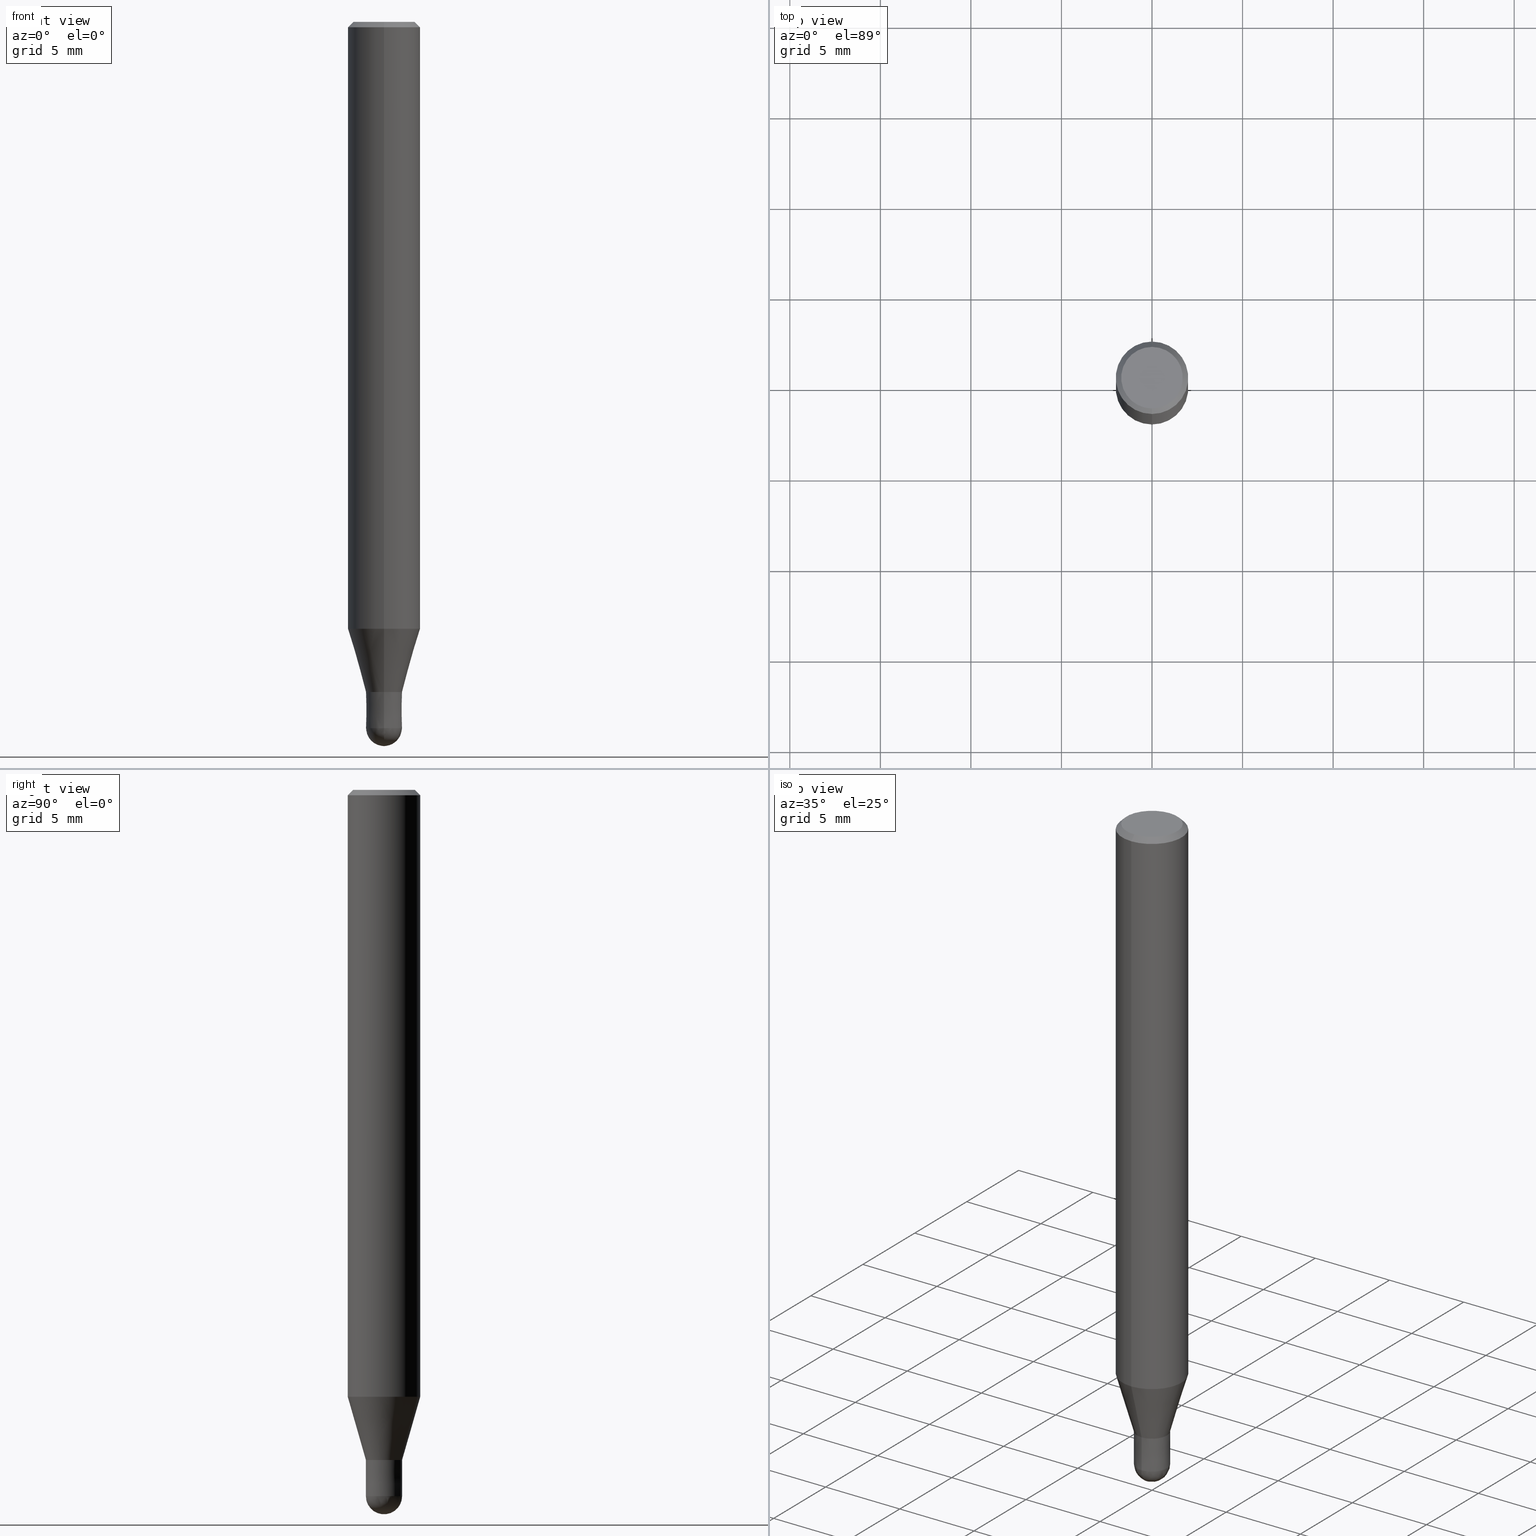
[diagram: canonical four-view strip — front | top / right | iso, engineering-drawing reading convention]
A machine part, canonical four-view strip (front | top / right | iso — engineering-drawing reading convention). The complete STEP part file that produces these views, byte-faithful:
ISO-10303-21;
HEADER;
FILE_DESCRIPTION(('no description'),'unknown implementation level');
FILE_NAME('HFB4020-0300S-Huellk.stp','  ',('CIMSOURCE GmbH'),('CADClick - KiM GmbH - www.kimweb.de'),'unknown preprocess','ACIS','unknown authorization');
FILE_SCHEMA(('automotive_design'));
ENDSEC;
DATA;
#1=MECHANICAL_DESIGN_GEOMETRIC_PRESENTATION_REPRESENTATION(' ',(#14,#15,#16,#17,#18,#19,#20,#21,#22,#23,#24,#25,#26,#27,#28,#29,#30,#31,#32,#33,#34,#35,#36,#37,#38,#39,#40,#41,#42,#43,#44,#45,#46,#47,#48,#49,#50,#51,#52,#53,#54,#55,#56,#57,#58,#59,#60,#61,#62,#63,#64,#65,#66),#10);
#2=PRODUCT_DEFINITION_CONTEXT('',#67,'design');
#3=APPLICATION_PROTOCOL_DEFINITION('INTERNATIONAL STANDARD','automotive_design',1994,#67);
#4=PRODUCT_CATEGORY_RELATIONSHIP('NONE','NONE',#68,#69);
#5=SHAPE_DEFINITION_REPRESENTATION(#70,#71);
#6=PRODUCT_DEFINITION_CONTEXT('',#72,'design');
#7=APPLICATION_PROTOCOL_DEFINITION('INTERNATIONAL STANDARD','automotive_design',1994,#72);
#8=PRODUCT_CATEGORY_RELATIONSHIP('NONE','NONE',#73,#74);
#9=SHAPE_DEFINITION_REPRESENTATION(#75,#76);
#10= (GEOMETRIC_REPRESENTATION_CONTEXT(3)GLOBAL_UNCERTAINTY_ASSIGNED_CONTEXT((#79))GLOBAL_UNIT_ASSIGNED_CONTEXT((#81,#82,#83))REPRESENTATION_CONTEXT('NONE','WORKSPACE'));
#14=STYLED_ITEM('',(#85),#86);
#15=STYLED_ITEM('',(#87),#88);
#16=STYLED_ITEM('',(#89),#90);
#17=STYLED_ITEM('',(#91),#92);
#18=STYLED_ITEM('',(#93),#94);
#19=STYLED_ITEM('',(#95),#96);
#20=STYLED_ITEM('',(#97),#98);
#21=STYLED_ITEM('',(#99),#100);
#22=STYLED_ITEM('',(#101),#102);
#23=STYLED_ITEM('',(#103),#104);
#24=STYLED_ITEM('',(#105),#106);
#25=STYLED_ITEM('',(#107),#108);
#26=STYLED_ITEM('',(#109),#110);
#27=STYLED_ITEM('',(#111),#112);
#28=STYLED_ITEM('',(#113),#114);
#29=STYLED_ITEM('',(#115),#116);
#30=STYLED_ITEM('',(#117),#118);
#31=STYLED_ITEM('',(#119),#120);
#32=STYLED_ITEM('',(#121),#122);
#33=STYLED_ITEM('',(#123),#124);
#34=STYLED_ITEM('',(#125),#126);
#35=STYLED_ITEM('',(#127),#128);
#36=STYLED_ITEM('',(#129),#130);
#37=STYLED_ITEM('',(#131),#132);
#38=STYLED_ITEM('',(#133),#134);
#39=STYLED_ITEM('',(#135),#136);
#40=STYLED_ITEM('',(#137),#138);
#41=STYLED_ITEM('',(#139),#140);
#42=STYLED_ITEM('',(#141),#142);
#43=STYLED_ITEM('',(#143),#144);
#44=STYLED_ITEM('',(#145),#146);
#45=STYLED_ITEM('',(#147),#148);
#46=STYLED_ITEM('',(#149),#150);
#47=STYLED_ITEM('',(#151),#152);
#48=STYLED_ITEM('',(#153),#154);
#49=STYLED_ITEM('',(#155),#156);
#50=STYLED_ITEM('',(#157),#158);
#51=STYLED_ITEM('',(#159),#160);
#52=STYLED_ITEM('',(#161),#162);
#53=STYLED_ITEM('',(#163),#164);
#54=STYLED_ITEM('',(#165),#166);
#55=STYLED_ITEM('',(#167),#168);
#56=STYLED_ITEM('',(#169),#170);
#57=STYLED_ITEM('',(#171),#172);
#58=STYLED_ITEM('',(#173),#174);
#59=STYLED_ITEM('',(#175),#176);
#60=STYLED_ITEM('',(#177),#178);
#61=STYLED_ITEM('',(#179),#180);
#62=STYLED_ITEM('',(#181),#182);
#63=STYLED_ITEM('',(#183),#184);
#64=STYLED_ITEM('',(#185),#186);
#65=STYLED_ITEM('',(#187),#188);
#66=STYLED_ITEM('',(#189),#190);
#67=APPLICATION_CONTEXT(' ');
#68=PRODUCT_CATEGORY('part','NONE');
#69=PRODUCT_RELATED_PRODUCT_CATEGORY('detail',' ',(#191));
#70=PRODUCT_DEFINITION_SHAPE('NONE','NONE',#192);
#71=ADVANCED_BREP_SHAPE_REPRESENTATION('1',(#114,#193),#10);
#72=APPLICATION_CONTEXT(' ');
#73=PRODUCT_CATEGORY('part','NONE');
#74=PRODUCT_RELATED_PRODUCT_CATEGORY('detail',' ',(#194));
#75=PRODUCT_DEFINITION_SHAPE('NONE','NONE',#195);
#76=ADVANCED_BREP_SHAPE_REPRESENTATION('2',(#190,#196),#10);
#79=UNCERTAINTY_MEASURE_WITH_UNIT(LENGTH_MEASURE(1.0E-006),#81,'','');
#81= (CONVERSION_BASED_UNIT('MILLIMETRE',#199)LENGTH_UNIT()NAMED_UNIT(#202));
#82= (NAMED_UNIT(#204)PLANE_ANGLE_UNIT()SI_UNIT($,.RADIAN.));
#83= (NAMED_UNIT(#204)SOLID_ANGLE_UNIT()SI_UNIT($,.STERADIAN.));
#85=PRESENTATION_STYLE_ASSIGNMENT((#210));
#86=EDGE_CURVE('',#104,#178,#211,.T.);
#87=PRESENTATION_STYLE_ASSIGNMENT((#212));
#88=EDGE_CURVE('',#154,#128,#213,.T.);
#89=PRESENTATION_STYLE_ASSIGNMENT((#214));
#90=EDGE_CURVE('',#176,#130,#215,.T.);
#91=PRESENTATION_STYLE_ASSIGNMENT((#216));
#92=EDGE_CURVE('',#156,#138,#217,.T.);
#93=PRESENTATION_STYLE_ASSIGNMENT((#218));
#94=EDGE_CURVE('',#176,#150,#219,.T.);
#95=PRESENTATION_STYLE_ASSIGNMENT((#220));
#96=EDGE_CURVE('',#130,#160,#221,.T.);
#97=PRESENTATION_STYLE_ASSIGNMENT((#222));
#98=EDGE_CURVE('',#138,#156,#223,.T.);
#99=PRESENTATION_STYLE_ASSIGNMENT((#224));
#100=EDGE_CURVE('',#178,#170,#225,.T.);
#101=PRESENTATION_STYLE_ASSIGNMENT((#226));
#102=ADVANCED_FACE('',(#227),#228,.T.);
#103=PRESENTATION_STYLE_ASSIGNMENT((#229));
#104=VERTEX_POINT('',#230);
#105=PRESENTATION_STYLE_ASSIGNMENT((#231));
#106=ADVANCED_FACE('',(#232),#233,.T.);
#107=PRESENTATION_STYLE_ASSIGNMENT((#234));
#108=ADVANCED_FACE('',(#235),#236,.T.);
#109=PRESENTATION_STYLE_ASSIGNMENT((#237));
#110=ADVANCED_FACE('',(#238),#239,.T.);
#111=PRESENTATION_STYLE_ASSIGNMENT((#240));
#112=ADVANCED_FACE('',(#241),#242,.T.);
#113=PRESENTATION_STYLE_ASSIGNMENT((#243));
#114=MANIFOLD_SOLID_BREP('1',#244);
#115=PRESENTATION_STYLE_ASSIGNMENT((#245));
#116=EDGE_CURVE('',#144,#170,#246,.T.);
#117=PRESENTATION_STYLE_ASSIGNMENT((#247));
#118=EDGE_CURVE('',#170,#144,#248,.T.);
#119=PRESENTATION_STYLE_ASSIGNMENT((#249));
#120=ADVANCED_FACE('',(#250),#251,.T.);
#121=PRESENTATION_STYLE_ASSIGNMENT((#252));
#122=EDGE_CURVE('',#154,#162,#253,.T.);
#123=PRESENTATION_STYLE_ASSIGNMENT((#254));
#124=ADVANCED_FACE('',(#255),#256,.T.);
#125=PRESENTATION_STYLE_ASSIGNMENT((#257));
#126=EDGE_CURVE('',#144,#104,#258,.T.);
#127=PRESENTATION_STYLE_ASSIGNMENT((#259));
#128=VERTEX_POINT('',#260);
#129=PRESENTATION_STYLE_ASSIGNMENT((#261));
#130=VERTEX_POINT('',#262);
#131=PRESENTATION_STYLE_ASSIGNMENT((#263));
#132=EDGE_CURVE('',#128,#188,#264,.T.);
#133=PRESENTATION_STYLE_ASSIGNMENT((#265));
#134=ADVANCED_FACE('',(#266),#267,.T.);
#135=PRESENTATION_STYLE_ASSIGNMENT((#268));
#136=EDGE_CURVE('',#150,#138,#269,.T.);
#137=PRESENTATION_STYLE_ASSIGNMENT((#270));
#138=VERTEX_POINT('',#271);
#139=PRESENTATION_STYLE_ASSIGNMENT((#272));
#140=EDGE_CURVE('',#162,#154,#273,.T.);
#141=PRESENTATION_STYLE_ASSIGNMENT((#274));
#142=EDGE_CURVE('',#150,#176,#275,.T.);
#143=PRESENTATION_STYLE_ASSIGNMENT((#276));
#144=VERTEX_POINT('',#277);
#145=PRESENTATION_STYLE_ASSIGNMENT((#278));
#146=EDGE_CURVE('',#178,#104,#279,.T.);
#147=PRESENTATION_STYLE_ASSIGNMENT((#280));
#148=EDGE_CURVE('',#144,#170,#281,.T.);
#149=PRESENTATION_STYLE_ASSIGNMENT((#282));
#150=VERTEX_POINT('',#283);
#151=PRESENTATION_STYLE_ASSIGNMENT((#284));
#152=ADVANCED_FACE('',(#285),#286,.T.);
#153=PRESENTATION_STYLE_ASSIGNMENT((#287));
#154=VERTEX_POINT('',#288);
#155=PRESENTATION_STYLE_ASSIGNMENT((#289));
#156=VERTEX_POINT('',#290);
#157=PRESENTATION_STYLE_ASSIGNMENT((#291));
#158=EDGE_CURVE('',#156,#176,#292,.T.);
#159=PRESENTATION_STYLE_ASSIGNMENT((#293));
#160=VERTEX_POINT('',#294);
#161=PRESENTATION_STYLE_ASSIGNMENT((#295));
#162=VERTEX_POINT('',#296);
#163=PRESENTATION_STYLE_ASSIGNMENT((#297));
#164=EDGE_CURVE('',#160,#130,#298,.T.);
#165=PRESENTATION_STYLE_ASSIGNMENT((#299));
#166=ADVANCED_FACE('',(#300),#301,.T.);
#167=PRESENTATION_STYLE_ASSIGNMENT((#302));
#168=ADVANCED_FACE('',(#303),#304,.T.);
#169=PRESENTATION_STYLE_ASSIGNMENT((#305));
#170=VERTEX_POINT('',#306);
#171=PRESENTATION_STYLE_ASSIGNMENT((#307));
#172=ADVANCED_FACE('',(#308),#309,.T.);
#173=PRESENTATION_STYLE_ASSIGNMENT((#310));
#174=ADVANCED_FACE('',(#311),#312,.T.);
#175=PRESENTATION_STYLE_ASSIGNMENT((#313));
#176=VERTEX_POINT('',#314);
#177=PRESENTATION_STYLE_ASSIGNMENT((#315));
#178=VERTEX_POINT('',#316);
#179=PRESENTATION_STYLE_ASSIGNMENT((#317));
#180=EDGE_CURVE('',#188,#162,#318,.T.);
#181=PRESENTATION_STYLE_ASSIGNMENT((#319));
#182=EDGE_CURVE('',#160,#150,#320,.T.);
#183=PRESENTATION_STYLE_ASSIGNMENT((#321));
#184=EDGE_CURVE('',#188,#128,#322,.T.);
#185=PRESENTATION_STYLE_ASSIGNMENT((#323));
#186=ADVANCED_FACE('',(#324,#325),#326,.T.);
#187=PRESENTATION_STYLE_ASSIGNMENT((#327));
#188=VERTEX_POINT('',#328);
#189=PRESENTATION_STYLE_ASSIGNMENT((#329));
#190=MANIFOLD_SOLID_BREP('2',#330);
#191=PRODUCT('1','1','PART-1-DESC',(#331));
#192=PRODUCT_DEFINITION('NONE','NONE',#332,#2);
#193=AXIS2_PLACEMENT_3D('',#333,#334,#335);
#194=PRODUCT('2','2','PART-2-DESC',(#336));
#195=PRODUCT_DEFINITION('NONE','NONE',#337,#6);
#196=AXIS2_PLACEMENT_3D('',#338,#339,#340);
#199=LENGTH_MEASURE_WITH_UNIT(LENGTH_MEASURE(1.0),#341);
#202=DIMENSIONAL_EXPONENTS(1.0,0.0,0.0,0.0,0.0,0.0,0.0);
#204=DIMENSIONAL_EXPONENTS(0.0,0.0,0.0,0.0,0.0,0.0,0.0);
#210=CURVE_STYLE('',#342,POSITIVE_LENGTH_MEASURE(1.0E-006),#343);
#211=CIRCLE('',#344,0.9999);
#212=CURVE_STYLE('',#345,POSITIVE_LENGTH_MEASURE(1.0E-006),#346);
#213=LINE('',#347,#348);
#214=CURVE_STYLE('',#349,POSITIVE_LENGTH_MEASURE(1.0E-006),#350);
#215=LINE('',#351,#352);
#216=CURVE_STYLE('',#353,POSITIVE_LENGTH_MEASURE(1.0E-006),#354);
#217=CIRCLE('',#355,1.7);
#218=CURVE_STYLE('',#356,POSITIVE_LENGTH_MEASURE(1.0E-006),#357);
#219=CIRCLE('',#358,2.0);
#220=CURVE_STYLE('',#359,POSITIVE_LENGTH_MEASURE(1.0E-006),#360);
#221=CIRCLE('',#361,2.0);
#222=CURVE_STYLE('',#362,POSITIVE_LENGTH_MEASURE(1.0E-006),#363);
#223=CIRCLE('',#364,1.7);
#224=CURVE_STYLE('',#365,POSITIVE_LENGTH_MEASURE(1.0E-006),#366);
#225=LINE('',#367,#368);
#226=SURFACE_STYLE_USAGE(.BOTH.,#369);
#227=FACE_OUTER_BOUND('',#370,.T.);
#228=PLANE('',#371);
#229=POINT_STYLE(' ',#372,POSITIVE_LENGTH_MEASURE(1.0E-006),#373);
#230=CARTESIAN_POINT('',(1.224483893187E-016,-0.9999,-37.0));
#231=SURFACE_STYLE_USAGE(.BOTH.,#374);
#232=FACE_OUTER_BOUND('',#375,.T.);
#233=CONICAL_SURFACE('',#376,1.85,0.785398163397453);
#234=SURFACE_STYLE_USAGE(.BOTH.,#377);
#235=FACE_OUTER_BOUND('',#378,.T.);
#236=CONICAL_SURFACE('',#379,1.49995,0.279284171542493);
#237=SURFACE_STYLE_USAGE(.BOTH.,#380);
#238=FACE_OUTER_BOUND('',#381,.T.);
#239=PLANE('',#382);
#240=SURFACE_STYLE_USAGE(.BOTH.,#383);
#241=FACE_OUTER_BOUND('',#384,.T.);
#242=CONICAL_SURFACE('',#385,1.49995,0.279284171542493);
#243=SURFACE_STYLE_USAGE(.BOTH.,#386);
#244=CLOSED_SHELL('',(#108,#120,#106,#186,#124,#172,#152,#112,#110));
#245=CURVE_STYLE('',#387,POSITIVE_LENGTH_MEASURE(1.0E-006),#388);
#246=CIRCLE('',#389,1.0);
#247=CURVE_STYLE('',#390,POSITIVE_LENGTH_MEASURE(1.0E-006),#391);
#248=CIRCLE('',#392,1.0);
#249=SURFACE_STYLE_USAGE(.BOTH.,#393);
#250=FACE_OUTER_BOUND('',#394,.T.);
#251=CYLINDRICAL_SURFACE('',#395,2.0);
#252=CURVE_STYLE('',#396,POSITIVE_LENGTH_MEASURE(1.0E-006),#397);
#253=CIRCLE('',#398,0.99995);
#254=SURFACE_STYLE_USAGE(.BOTH.,#399);
#255=FACE_OUTER_BOUND('',#400,.T.);
#256=PLANE('',#401);
#257=CURVE_STYLE('',#402,POSITIVE_LENGTH_MEASURE(1.0E-006),#403);
#258=LINE('',#404,#405);
#259=POINT_STYLE(' ',#406,POSITIVE_LENGTH_MEASURE(1.0E-006),#407);
#260=CARTESIAN_POINT('',(2.44915147732706E-016,-1.99995,-33.513));
#261=POINT_STYLE(' ',#408,POSITIVE_LENGTH_MEASURE(1.0E-006),#409);
#262=CARTESIAN_POINT('',(0.0,2.0,-33.513));
#263=CURVE_STYLE('',#410,POSITIVE_LENGTH_MEASURE(1.0E-006),#411);
#264=CIRCLE('',#412,1.99995);
#265=SURFACE_STYLE_USAGE(.BOTH.,#413);
#266=FACE_OUTER_BOUND('',#414,.T.);
#267=SPHERICAL_SURFACE('',#415,1.0);
#268=CURVE_STYLE('',#416,POSITIVE_LENGTH_MEASURE(1.0E-006),#417);
#269=LINE('',#418,#419);
#270=POINT_STYLE(' ',#420,POSITIVE_LENGTH_MEASURE(1.0E-006),#421);
#271=CARTESIAN_POINT('',(2.08183080149804E-016,-1.7,0.0));
#272=CURVE_STYLE('',#422,POSITIVE_LENGTH_MEASURE(1.0E-006),#423);
#273=CIRCLE('',#424,0.99995);
#274=CURVE_STYLE('',#425,POSITIVE_LENGTH_MEASURE(1.0E-006),#426);
#275=CIRCLE('',#427,2.0);
#276=POINT_STYLE(' ',#428,POSITIVE_LENGTH_MEASURE(1.0E-006),#429);
#277=CARTESIAN_POINT('',(1.22460635382238E-016,-1.0,-39.0));
#278=CURVE_STYLE('',#430,POSITIVE_LENGTH_MEASURE(1.0E-006),#431);
#279=CIRCLE('',#432,0.9999);
#280=CURVE_STYLE('',#433,POSITIVE_LENGTH_MEASURE(1.0E-006),#434);
#281=CIRCLE('',#435,1.0);
#282=POINT_STYLE(' ',#436,POSITIVE_LENGTH_MEASURE(1.0E-006),#437);
#283=CARTESIAN_POINT('',(2.44921270764475E-016,-2.0,-0.299999999999997));
#284=SURFACE_STYLE_USAGE(.BOTH.,#438);
#285=FACE_OUTER_BOUND('',#439,.T.);
#286=CYLINDRICAL_SURFACE('',#440,2.0);
#287=POINT_STYLE(' ',#441,POSITIVE_LENGTH_MEASURE(1.0E-006),#442);
#288=CARTESIAN_POINT('',(1.22454512350469E-016,-0.99995,-37.0));
#289=POINT_STYLE(' ',#443,POSITIVE_LENGTH_MEASURE(1.0E-006),#444);
#290=CARTESIAN_POINT('',(0.0,1.7,0.0));
#291=CURVE_STYLE('',#445,POSITIVE_LENGTH_MEASURE(1.0E-006),#446);
#292=LINE('',#447,#448);
#293=POINT_STYLE(' ',#449,POSITIVE_LENGTH_MEASURE(1.0E-006),#450);
#294=CARTESIAN_POINT('',(2.44921270764475E-016,-2.0,-33.513));
#295=POINT_STYLE(' ',#451,POSITIVE_LENGTH_MEASURE(1.0E-006),#452);
#296=CARTESIAN_POINT('',(0.0,0.99995,-37.0));
#297=CURVE_STYLE('',#453,POSITIVE_LENGTH_MEASURE(1.0E-006),#454);
#298=CIRCLE('',#455,2.0);
#299=SURFACE_STYLE_USAGE(.BOTH.,#456);
#300=FACE_OUTER_BOUND('',#457,.T.);
#301=CONICAL_SURFACE('',#458,0.99995,4.99999999583278E-005);
#302=SURFACE_STYLE_USAGE(.BOTH.,#459);
#303=FACE_OUTER_BOUND('',#460,.T.);
#304=SPHERICAL_SURFACE('',#461,1.0);
#305=POINT_STYLE(' ',#462,POSITIVE_LENGTH_MEASURE(1.0E-006),#463);
#306=CARTESIAN_POINT('',(0.0,1.0,-39.0));
#307=SURFACE_STYLE_USAGE(.BOTH.,#464);
#308=FACE_OUTER_BOUND('',#465,.T.);
#309=CONICAL_SURFACE('',#466,1.85,0.785398163397453);
#310=SURFACE_STYLE_USAGE(.BOTH.,#467);
#311=FACE_OUTER_BOUND('',#468,.T.);
#312=CONICAL_SURFACE('',#469,0.99995,4.99999999583278E-005);
#313=POINT_STYLE(' ',#470,POSITIVE_LENGTH_MEASURE(1.0E-006),#471);
#314=CARTESIAN_POINT('',(0.0,2.0,-0.299999999999997));
#315=POINT_STYLE(' ',#472,POSITIVE_LENGTH_MEASURE(1.0E-006),#473);
#316=CARTESIAN_POINT('',(0.0,0.9999,-37.0));
#317=CURVE_STYLE('',#474,POSITIVE_LENGTH_MEASURE(1.0E-006),#475);
#318=LINE('',#476,#477);
#319=CURVE_STYLE('',#478,POSITIVE_LENGTH_MEASURE(1.0E-006),#479);
#320=LINE('',#480,#481);
#321=CURVE_STYLE('',#482,POSITIVE_LENGTH_MEASURE(1.0E-006),#483);
#322=CIRCLE('',#484,1.99995);
#323=SURFACE_STYLE_USAGE(.BOTH.,#485);
#324=FACE_OUTER_BOUND('',#486,.T.);
#325=FACE_BOUND('',#487,.T.);
#326=PLANE('',#488);
#327=POINT_STYLE(' ',#489,POSITIVE_LENGTH_MEASURE(1.0E-006),#490);
#328=CARTESIAN_POINT('',(0.0,1.99995,-33.513));
#329=SURFACE_STYLE_USAGE(.BOTH.,#491);
#330=CLOSED_SHELL('',(#134,#166,#102,#174,#168));
#331=PRODUCT_CONTEXT('',#67,'mechanical');
#332=PRODUCT_DEFINITION_FORMATION_WITH_SPECIFIED_SOURCE(' ','NONE',#191,.NOT_KNOWN.);
#333=CARTESIAN_POINT('',(0.0,0.0,0.0));
#334=DIRECTION('',(0.0,0.0,1.0));
#335=DIRECTION('',(1.0,0.0,0.0));
#336=PRODUCT_CONTEXT('',#72,'mechanical');
#337=PRODUCT_DEFINITION_FORMATION_WITH_SPECIFIED_SOURCE(' ','NONE',#194,.NOT_KNOWN.);
#338=CARTESIAN_POINT('',(0.0,0.0,0.0));
#339=DIRECTION('',(0.0,0.0,1.0));
#340=DIRECTION('',(1.0,0.0,0.0));
#341= (NAMED_UNIT(#202)LENGTH_UNIT()SI_UNIT(.MILLI.,.METRE.));
#342=DRAUGHTING_PRE_DEFINED_CURVE_FONT('continuous');
#343=COLOUR_RGB('',0.800000011920929,0.800000011920929,0.800000011920929);
#344=AXIS2_PLACEMENT_3D('',#493,#494,#495);
#345=DRAUGHTING_PRE_DEFINED_CURVE_FONT('continuous');
#346=COLOUR_RGB('',0.498039215803146,0.498039215803146,0.498039215803146);
#347=CARTESIAN_POINT('',(1.83684830041587E-016,-1.49995,-35.2565));
#348=VECTOR('',#496,1.0);
#349=DRAUGHTING_PRE_DEFINED_CURVE_FONT('continuous');
#350=COLOUR_RGB('',0.498039215803146,0.498039215803146,0.498039215803146);
#351=CARTESIAN_POINT('',(-2.44921270764475E-016,2.0,-16.9065));
#352=VECTOR('',#497,1.0);
#353=DRAUGHTING_PRE_DEFINED_CURVE_FONT('continuous');
#354=COLOUR_RGB('',0.498039215803146,0.498039215803146,0.498039215803146);
#355=AXIS2_PLACEMENT_3D('',#498,#499,#500);
#356=DRAUGHTING_PRE_DEFINED_CURVE_FONT('continuous');
#357=COLOUR_RGB('',0.498039215803146,0.498039215803146,0.498039215803146);
#358=AXIS2_PLACEMENT_3D('',#501,#502,#503);
#359=DRAUGHTING_PRE_DEFINED_CURVE_FONT('continuous');
#360=COLOUR_RGB('',0.498039215803146,0.498039215803146,0.498039215803146);
#361=AXIS2_PLACEMENT_3D('',#504,#505,#506);
#362=DRAUGHTING_PRE_DEFINED_CURVE_FONT('continuous');
#363=COLOUR_RGB('',0.498039215803146,0.498039215803146,0.498039215803146);
#364=AXIS2_PLACEMENT_3D('',#507,#508,#509);
#365=DRAUGHTING_PRE_DEFINED_CURVE_FONT('continuous');
#366=COLOUR_RGB('',0.800000011920929,0.800000011920929,0.800000011920929);
#367=CARTESIAN_POINT('',(-1.22454512350469E-016,0.99995,-38.0));
#368=VECTOR('',#510,1.0);
#369=SURFACE_SIDE_STYLE('',(#511));
#370=EDGE_LOOP('',(#512,#513));
#371=AXIS2_PLACEMENT_3D('',#514,#515,#516);
#372=PRE_DEFINED_MARKER('');
#373=COLOUR_RGB('',0.800000011920929,0.800000011920929,0.800000011920929);
#374=SURFACE_SIDE_STYLE('',(#517));
#375=EDGE_LOOP('',(#518,#519,#520,#521));
#376=AXIS2_PLACEMENT_3D('',#522,#523,#524);
#377=SURFACE_SIDE_STYLE('',(#525));
#378=EDGE_LOOP('',(#526,#527,#528,#529));
#379=AXIS2_PLACEMENT_3D('',#530,#531,#532);
#380=SURFACE_SIDE_STYLE('',(#533));
#381=EDGE_LOOP('',(#534,#535));
#382=AXIS2_PLACEMENT_3D('',#536,#537,#538);
#383=SURFACE_SIDE_STYLE('',(#539));
#384=EDGE_LOOP('',(#540,#541,#542,#543));
#385=AXIS2_PLACEMENT_3D('',#544,#545,#546);
#386=SURFACE_SIDE_STYLE('',(#547));
#387=DRAUGHTING_PRE_DEFINED_CURVE_FONT('continuous');
#388=COLOUR_RGB('',0.800000011920929,0.800000011920929,0.800000011920929);
#389=AXIS2_PLACEMENT_3D('',#548,#549,#550);
#390=DRAUGHTING_PRE_DEFINED_CURVE_FONT('continuous');
#391=COLOUR_RGB('',0.800000011920929,0.800000011920929,0.800000011920929);
#392=AXIS2_PLACEMENT_3D('',#551,#552,#553);
#393=SURFACE_SIDE_STYLE('',(#554));
#394=EDGE_LOOP('',(#555,#556,#557,#558));
#395=AXIS2_PLACEMENT_3D('',#559,#560,#561);
#396=DRAUGHTING_PRE_DEFINED_CURVE_FONT('continuous');
#397=COLOUR_RGB('',0.498039215803146,0.498039215803146,0.498039215803146);
#398=AXIS2_PLACEMENT_3D('',#562,#563,#564);
#399=SURFACE_SIDE_STYLE('',(#565));
#400=EDGE_LOOP('',(#566,#567));
#401=AXIS2_PLACEMENT_3D('',#568,#569,#570);
#402=DRAUGHTING_PRE_DEFINED_CURVE_FONT('continuous');
#403=COLOUR_RGB('',0.800000011920929,0.800000011920929,0.800000011920929);
#404=CARTESIAN_POINT('',(1.22454512350469E-016,-0.99995,-38.0));
#405=VECTOR('',#571,1.0);
#406=PRE_DEFINED_MARKER('');
#407=COLOUR_RGB('',0.498039215803146,0.498039215803146,0.498039215803146);
#408=PRE_DEFINED_MARKER('');
#409=COLOUR_RGB('',0.498039215803146,0.498039215803146,0.498039215803146);
#410=DRAUGHTING_PRE_DEFINED_CURVE_FONT('continuous');
#411=COLOUR_RGB('',0.498039215803146,0.498039215803146,0.498039215803146);
#412=AXIS2_PLACEMENT_3D('',#572,#573,#574);
#413=SURFACE_SIDE_STYLE('',(#575));
#414=EDGE_LOOP('',(#576,#577));
#415=AXIS2_PLACEMENT_3D('',#578,#579,#580);
#416=DRAUGHTING_PRE_DEFINED_CURVE_FONT('continuous');
#417=COLOUR_RGB('',0.498039215803146,0.498039215803146,0.498039215803146);
#418=CARTESIAN_POINT('',(2.2655217545714E-016,-1.85,-0.149999999999999));
#419=VECTOR('',#581,1.0);
#420=PRE_DEFINED_MARKER('');
#421=COLOUR_RGB('',0.498039215803146,0.498039215803146,0.498039215803146);
#422=DRAUGHTING_PRE_DEFINED_CURVE_FONT('continuous');
#423=COLOUR_RGB('',0.498039215803146,0.498039215803146,0.498039215803146);
#424=AXIS2_PLACEMENT_3D('',#582,#583,#584);
#425=DRAUGHTING_PRE_DEFINED_CURVE_FONT('continuous');
#426=COLOUR_RGB('',0.498039215803146,0.498039215803146,0.498039215803146);
#427=AXIS2_PLACEMENT_3D('',#585,#586,#587);
#428=PRE_DEFINED_MARKER('');
#429=COLOUR_RGB('',0.800000011920929,0.800000011920929,0.800000011920929);
#430=DRAUGHTING_PRE_DEFINED_CURVE_FONT('continuous');
#431=COLOUR_RGB('',0.800000011920929,0.800000011920929,0.800000011920929);
#432=AXIS2_PLACEMENT_3D('',#588,#589,#590);
#433=DRAUGHTING_PRE_DEFINED_CURVE_FONT('continuous');
#434=COLOUR_RGB('',0.800000011920929,0.800000011920929,0.800000011920929);
#435=AXIS2_PLACEMENT_3D('',#591,#592,#593);
#436=PRE_DEFINED_MARKER('');
#437=COLOUR_RGB('',0.498039215803146,0.498039215803146,0.498039215803146);
#438=SURFACE_SIDE_STYLE('',(#594));
#439=EDGE_LOOP('',(#595,#596,#597,#598));
#440=AXIS2_PLACEMENT_3D('',#599,#600,#601);
#441=PRE_DEFINED_MARKER('');
#442=COLOUR_RGB('',0.498039215803146,0.498039215803146,0.498039215803146);
#443=PRE_DEFINED_MARKER('');
#444=COLOUR_RGB('',0.498039215803146,0.498039215803146,0.498039215803146);
#445=DRAUGHTING_PRE_DEFINED_CURVE_FONT('continuous');
#446=COLOUR_RGB('',0.498039215803146,0.498039215803146,0.498039215803146);
#447=CARTESIAN_POINT('',(-2.2655217545714E-016,1.85,-0.149999999999999));
#448=VECTOR('',#602,1.0);
#449=PRE_DEFINED_MARKER('');
#450=COLOUR_RGB('',0.498039215803146,0.498039215803146,0.498039215803146);
#451=PRE_DEFINED_MARKER('');
#452=COLOUR_RGB('',0.498039215803146,0.498039215803146,0.498039215803146);
#453=DRAUGHTING_PRE_DEFINED_CURVE_FONT('continuous');
#454=COLOUR_RGB('',0.498039215803146,0.498039215803146,0.498039215803146);
#455=AXIS2_PLACEMENT_3D('',#603,#604,#605);
#456=SURFACE_SIDE_STYLE('',(#606));
#457=EDGE_LOOP('',(#607,#608,#609,#610));
#458=AXIS2_PLACEMENT_3D('',#611,#612,#613);
#459=SURFACE_SIDE_STYLE('',(#614));
#460=EDGE_LOOP('',(#615,#616));
#461=AXIS2_PLACEMENT_3D('',#617,#618,#619);
#462=PRE_DEFINED_MARKER('');
#463=COLOUR_RGB('',0.800000011920929,0.800000011920929,0.800000011920929);
#464=SURFACE_SIDE_STYLE('',(#620));
#465=EDGE_LOOP('',(#621,#622,#623,#624));
#466=AXIS2_PLACEMENT_3D('',#625,#626,#627);
#467=SURFACE_SIDE_STYLE('',(#628));
#468=EDGE_LOOP('',(#629,#630,#631,#632));
#469=AXIS2_PLACEMENT_3D('',#633,#634,#635);
#470=PRE_DEFINED_MARKER('');
#471=COLOUR_RGB('',0.498039215803146,0.498039215803146,0.498039215803146);
#472=PRE_DEFINED_MARKER('');
#473=COLOUR_RGB('',0.800000011920929,0.800000011920929,0.800000011920929);
#474=DRAUGHTING_PRE_DEFINED_CURVE_FONT('continuous');
#475=COLOUR_RGB('',0.498039215803146,0.498039215803146,0.498039215803146);
#476=CARTESIAN_POINT('',(-1.83684830041587E-016,1.49995,-35.2565));
#477=VECTOR('',#636,1.0);
#478=DRAUGHTING_PRE_DEFINED_CURVE_FONT('continuous');
#479=COLOUR_RGB('',0.498039215803146,0.498039215803146,0.498039215803146);
#480=CARTESIAN_POINT('',(2.44921270764475E-016,-2.0,-16.9065));
#481=VECTOR('',#637,1.0);
#482=DRAUGHTING_PRE_DEFINED_CURVE_FONT('continuous');
#483=COLOUR_RGB('',0.498039215803146,0.498039215803146,0.498039215803146);
#484=AXIS2_PLACEMENT_3D('',#638,#639,#640);
#485=SURFACE_SIDE_STYLE('',(#641));
#486=EDGE_LOOP('',(#642,#643));
#487=EDGE_LOOP('',(#644,#645));
#488=AXIS2_PLACEMENT_3D('',#646,#647,#648);
#489=PRE_DEFINED_MARKER('');
#490=COLOUR_RGB('',0.498039215803146,0.498039215803146,0.498039215803146);
#491=SURFACE_SIDE_STYLE('',(#649));
#493=CARTESIAN_POINT('',(0.0,0.0,-37.0));
#494=DIRECTION('',(0.0,0.0,-1.0));
#495=DIRECTION('',(0.0,1.0,0.0));
#496=DIRECTION('',(3.3758432755158E-017,-0.275667626987133,0.961253015304131));
#497=DIRECTION('',(0.0,0.0,-1.0));
#498=CARTESIAN_POINT('',(0.0,0.0,0.0));
#499=DIRECTION('',(0.0,0.0,-1.0));
#500=DIRECTION('',(0.0,1.0,0.0));
#501=CARTESIAN_POINT('',(0.0,0.0,-0.299999999999997));
#502=DIRECTION('',(0.0,0.0,-1.0));
#503=DIRECTION('',(0.0,1.0,0.0));
#504=CARTESIAN_POINT('',(0.0,0.0,-33.513));
#505=DIRECTION('',(0.0,0.0,-1.0));
#506=DIRECTION('',(0.0,1.0,0.0));
#507=CARTESIAN_POINT('',(0.0,0.0,0.0));
#508=DIRECTION('',(0.0,0.0,-1.0));
#509=DIRECTION('',(0.0,1.0,0.0));
#510=DIRECTION('',(-6.12303176145742E-021,4.99999999374945E-005,-0.99999999875));
#511=SURFACE_STYLE_FILL_AREA(#650);
#512=ORIENTED_EDGE('',*,*,#146,.F.);
#513=ORIENTED_EDGE('',*,*,#86,.F.);
#514=CARTESIAN_POINT('',(0.0,0.49995,-37.0));
#515=DIRECTION('',(-0.0,0.0,1.0));
#516=DIRECTION('',(0.0,-1.0,0.0));
#517=SURFACE_STYLE_FILL_AREA(#651);
#518=ORIENTED_EDGE('',*,*,#158,.F.);
#519=ORIENTED_EDGE('',*,*,#92,.T.);
#520=ORIENTED_EDGE('',*,*,#136,.F.);
#521=ORIENTED_EDGE('',*,*,#94,.F.);
#522=CARTESIAN_POINT('',(0.0,0.0,-0.149999999999999));
#523=DIRECTION('',(0.0,-0.0,-1.0));
#524=DIRECTION('',(0.0,1.0,0.0));
#525=SURFACE_STYLE_FILL_AREA(#652);
#526=ORIENTED_EDGE('',*,*,#180,.F.);
#527=ORIENTED_EDGE('',*,*,#184,.T.);
#528=ORIENTED_EDGE('',*,*,#88,.F.);
#529=ORIENTED_EDGE('',*,*,#140,.F.);
#530=CARTESIAN_POINT('',(0.0,0.0,-35.2565));
#531=DIRECTION('',(-0.0,-0.0,1.0));
#532=DIRECTION('',(0.0,1.0,0.0));
#533=SURFACE_STYLE_FILL_AREA(#653);
#534=ORIENTED_EDGE('',*,*,#140,.T.);
#535=ORIENTED_EDGE('',*,*,#122,.T.);
#536=CARTESIAN_POINT('',(0.0,0.499975,-37.0));
#537=DIRECTION('',(0.0,0.0,-1.0));
#538=DIRECTION('',(0.0,1.0,0.0));
#539=SURFACE_STYLE_FILL_AREA(#654);
#540=ORIENTED_EDGE('',*,*,#180,.T.);
#541=ORIENTED_EDGE('',*,*,#122,.F.);
#542=ORIENTED_EDGE('',*,*,#88,.T.);
#543=ORIENTED_EDGE('',*,*,#132,.T.);
#544=CARTESIAN_POINT('',(0.0,0.0,-35.2565));
#545=DIRECTION('',(-0.0,-0.0,1.0));
#546=DIRECTION('',(0.0,1.0,0.0));
#547=SURFACE_STYLE_FILL_AREA(#655);
#548=CARTESIAN_POINT('',(0.0,0.0,-39.0));
#549=DIRECTION('',(1.0,0.0,1.22460635382238E-016));
#550=DIRECTION('',(-1.22460635382238E-016,0.0,1.0));
#551=CARTESIAN_POINT('',(0.0,0.0,-39.0));
#552=DIRECTION('',(0.0,0.0,-1.0));
#553=DIRECTION('',(0.0,1.0,0.0));
#554=SURFACE_STYLE_FILL_AREA(#656);
#555=ORIENTED_EDGE('',*,*,#90,.F.);
#556=ORIENTED_EDGE('',*,*,#94,.T.);
#557=ORIENTED_EDGE('',*,*,#182,.F.);
#558=ORIENTED_EDGE('',*,*,#96,.F.);
#559=CARTESIAN_POINT('',(0.0,0.0,-16.9065));
#560=DIRECTION('',(-0.0,-0.0,1.0));
#561=DIRECTION('',(0.0,1.0,0.0));
#562=CARTESIAN_POINT('',(0.0,0.0,-37.0));
#563=DIRECTION('',(0.0,0.0,-1.0));
#564=DIRECTION('',(0.0,1.0,0.0));
#565=SURFACE_STYLE_FILL_AREA(#657);
#566=ORIENTED_EDGE('',*,*,#92,.F.);
#567=ORIENTED_EDGE('',*,*,#98,.F.);
#568=CARTESIAN_POINT('',(0.0,0.85,0.0));
#569=DIRECTION('',(-0.0,0.0,1.0));
#570=DIRECTION('',(0.0,-1.0,0.0));
#571=DIRECTION('',(-6.12303176145742E-021,4.99999999374945E-005,0.99999999875));
#572=CARTESIAN_POINT('',(0.0,0.0,-33.513));
#573=DIRECTION('',(0.0,0.0,-1.0));
#574=DIRECTION('',(0.0,1.0,0.0));
#575=SURFACE_STYLE_FILL_AREA(#658);
#576=ORIENTED_EDGE('',*,*,#116,.F.);
#577=ORIENTED_EDGE('',*,*,#148,.T.);
#578=CARTESIAN_POINT('',(0.0,0.0,-39.0));
#579=DIRECTION('',(0.0,1.0,0.0));
#580=DIRECTION('',(0.0,0.0,-1.0));
#581=DIRECTION('',(-8.6592745707194E-017,0.707106781186551,0.707106781186544));
#582=CARTESIAN_POINT('',(0.0,0.0,-37.0));
#583=DIRECTION('',(0.0,0.0,-1.0));
#584=DIRECTION('',(0.0,1.0,0.0));
#585=CARTESIAN_POINT('',(0.0,0.0,-0.299999999999997));
#586=DIRECTION('',(0.0,0.0,-1.0));
#587=DIRECTION('',(0.0,1.0,0.0));
#588=CARTESIAN_POINT('',(0.0,0.0,-37.0));
#589=DIRECTION('',(0.0,0.0,-1.0));
#590=DIRECTION('',(0.0,1.0,0.0));
#591=CARTESIAN_POINT('',(0.0,0.0,-39.0));
#592=DIRECTION('',(0.0,0.0,-1.0));
#593=DIRECTION('',(0.0,1.0,0.0));
#594=SURFACE_STYLE_FILL_AREA(#659);
#595=ORIENTED_EDGE('',*,*,#90,.T.);
#596=ORIENTED_EDGE('',*,*,#164,.F.);
#597=ORIENTED_EDGE('',*,*,#182,.T.);
#598=ORIENTED_EDGE('',*,*,#142,.T.);
#599=CARTESIAN_POINT('',(0.0,0.0,-16.9065));
#600=DIRECTION('',(-0.0,-0.0,1.0));
#601=DIRECTION('',(0.0,1.0,0.0));
#602=DIRECTION('',(-8.6592745707194E-017,0.707106781186551,-0.707106781186544));
#603=CARTESIAN_POINT('',(0.0,0.0,-33.513));
#604=DIRECTION('',(0.0,0.0,-1.0));
#605=DIRECTION('',(0.0,1.0,0.0));
#606=SURFACE_STYLE_FILL_AREA(#660);
#607=ORIENTED_EDGE('',*,*,#100,.F.);
#608=ORIENTED_EDGE('',*,*,#146,.T.);
#609=ORIENTED_EDGE('',*,*,#126,.F.);
#610=ORIENTED_EDGE('',*,*,#118,.F.);
#611=CARTESIAN_POINT('',(0.0,0.0,-38.0));
#612=DIRECTION('',(0.0,-0.0,-1.0));
#613=DIRECTION('',(0.0,1.0,0.0));
#614=SURFACE_STYLE_FILL_AREA(#661);
#615=ORIENTED_EDGE('',*,*,#116,.T.);
#616=ORIENTED_EDGE('',*,*,#118,.T.);
#617=CARTESIAN_POINT('',(0.0,0.0,-39.0));
#618=DIRECTION('',(0.0,1.0,0.0));
#619=DIRECTION('',(0.0,0.0,-1.0));
#620=SURFACE_STYLE_FILL_AREA(#662);
#621=ORIENTED_EDGE('',*,*,#158,.T.);
#622=ORIENTED_EDGE('',*,*,#142,.F.);
#623=ORIENTED_EDGE('',*,*,#136,.T.);
#624=ORIENTED_EDGE('',*,*,#98,.T.);
#625=CARTESIAN_POINT('',(0.0,0.0,-0.149999999999999));
#626=DIRECTION('',(0.0,-0.0,-1.0));
#627=DIRECTION('',(0.0,1.0,0.0));
#628=SURFACE_STYLE_FILL_AREA(#663);
#629=ORIENTED_EDGE('',*,*,#100,.T.);
#630=ORIENTED_EDGE('',*,*,#148,.F.);
#631=ORIENTED_EDGE('',*,*,#126,.T.);
#632=ORIENTED_EDGE('',*,*,#86,.T.);
#633=CARTESIAN_POINT('',(0.0,0.0,-38.0));
#634=DIRECTION('',(0.0,-0.0,-1.0));
#635=DIRECTION('',(0.0,1.0,0.0));
#636=DIRECTION('',(3.3758432755158E-017,-0.275667626987133,-0.961253015304131));
#637=DIRECTION('',(-0.0,-0.0,1.0));
#638=CARTESIAN_POINT('',(0.0,0.0,-33.513));
#639=DIRECTION('',(0.0,0.0,-1.0));
#640=DIRECTION('',(0.0,1.0,0.0));
#641=SURFACE_STYLE_FILL_AREA(#664);
#642=ORIENTED_EDGE('',*,*,#96,.T.);
#643=ORIENTED_EDGE('',*,*,#164,.T.);
#644=ORIENTED_EDGE('',*,*,#184,.F.);
#645=ORIENTED_EDGE('',*,*,#132,.F.);
#646=CARTESIAN_POINT('',(0.0,1.0,-33.513));
#647=DIRECTION('',(0.0,0.0,-1.0));
#648=DIRECTION('',(0.0,1.0,0.0));
#649=SURFACE_STYLE_FILL_AREA(#665);
#650=FILL_AREA_STYLE('',(#666));
#651=FILL_AREA_STYLE('',(#667));
#652=FILL_AREA_STYLE('',(#668));
#653=FILL_AREA_STYLE('',(#669));
#654=FILL_AREA_STYLE('',(#670));
#655=FILL_AREA_STYLE('',(#671));
#656=FILL_AREA_STYLE('',(#672));
#657=FILL_AREA_STYLE('',(#673));
#658=FILL_AREA_STYLE('',(#674));
#659=FILL_AREA_STYLE('',(#675));
#660=FILL_AREA_STYLE('',(#676));
#661=FILL_AREA_STYLE('',(#677));
#662=FILL_AREA_STYLE('',(#678));
#663=FILL_AREA_STYLE('',(#679));
#664=FILL_AREA_STYLE('',(#680));
#665=FILL_AREA_STYLE('',(#681));
#666=FILL_AREA_STYLE_COLOUR('',#682);
#667=FILL_AREA_STYLE_COLOUR('',#683);
#668=FILL_AREA_STYLE_COLOUR('',#684);
#669=FILL_AREA_STYLE_COLOUR('',#685);
#670=FILL_AREA_STYLE_COLOUR('',#686);
#671=FILL_AREA_STYLE_COLOUR('',#687);
#672=FILL_AREA_STYLE_COLOUR('',#688);
#673=FILL_AREA_STYLE_COLOUR('',#689);
#674=FILL_AREA_STYLE_COLOUR('',#690);
#675=FILL_AREA_STYLE_COLOUR('',#691);
#676=FILL_AREA_STYLE_COLOUR('',#692);
#677=FILL_AREA_STYLE_COLOUR('',#693);
#678=FILL_AREA_STYLE_COLOUR('',#694);
#679=FILL_AREA_STYLE_COLOUR('',#695);
#680=FILL_AREA_STYLE_COLOUR('',#696);
#681=FILL_AREA_STYLE_COLOUR('',#697);
#682=COLOUR_RGB('',0.800000011920929,0.800000011920929,0.800000011920929);
#683=COLOUR_RGB('',0.498039215803146,0.498039215803146,0.498039215803146);
#684=COLOUR_RGB('',0.498039215803146,0.498039215803146,0.498039215803146);
#685=COLOUR_RGB('',0.498039215803146,0.498039215803146,0.498039215803146);
#686=COLOUR_RGB('',0.498039215803146,0.498039215803146,0.498039215803146);
#687=COLOUR_RGB('',0.498039215803146,0.498039215803146,0.498039215803146);
#688=COLOUR_RGB('',0.498039215803146,0.498039215803146,0.498039215803146);
#689=COLOUR_RGB('',0.498039215803146,0.498039215803146,0.498039215803146);
#690=COLOUR_RGB('',0.800000011920929,0.800000011920929,0.800000011920929);
#691=COLOUR_RGB('',0.498039215803146,0.498039215803146,0.498039215803146);
#692=COLOUR_RGB('',0.800000011920929,0.800000011920929,0.800000011920929);
#693=COLOUR_RGB('',0.800000011920929,0.800000011920929,0.800000011920929);
#694=COLOUR_RGB('',0.498039215803146,0.498039215803146,0.498039215803146);
#695=COLOUR_RGB('',0.800000011920929,0.800000011920929,0.800000011920929);
#696=COLOUR_RGB('',0.498039215803146,0.498039215803146,0.498039215803146);
#697=COLOUR_RGB('',0.800000011920929,0.800000011920929,0.800000011920929);
#698=AXIS2_PLACEMENT_3D('PCS',#699,#700,#701);
#699=CARTESIAN_POINT('',(0.0,0.0,0.0));
#700=DIRECTION('',(0.0,0.0,1.0));
#701=DIRECTION('',(1.0,0.0,0.0));
#702=AXIS2_PLACEMENT_3D('CIP',#703,#704,#705);
#703=CARTESIAN_POINT('',(0.0,0.0,-40.0));
#704=DIRECTION('',(0.0,0.0,1.0));
#705=DIRECTION('',(1.0,0.0,0.0));
#706=AXIS2_PLACEMENT_3D('CRP',#707,#708,#709);
#707=CARTESIAN_POINT('',(-1.0,0.0,-40.0));
#708=DIRECTION('',(0.0,0.0,1.0));
#709=DIRECTION('',(1.0,0.0,0.0));
#710=AXIS2_PLACEMENT_3D('MCS',#711,#712,#713);
#711=CARTESIAN_POINT('',(0.0,0.0,-33.513));
#712=DIRECTION('',(0.0,0.0,1.0));
#713=DIRECTION('',(1.0,0.0,0.0));
#714=CONSTRUCTIVE_GEOMETRY_REPRESENTATION_RELATIONSHIP('coordinate systems',$,#71,#715);
#715=CONSTRUCTIVE_GEOMETRY_REPRESENTATION('coordinate systems',(#698,#702,#706,#710),#10);
ENDSEC;
END-ISO-10303-21;
